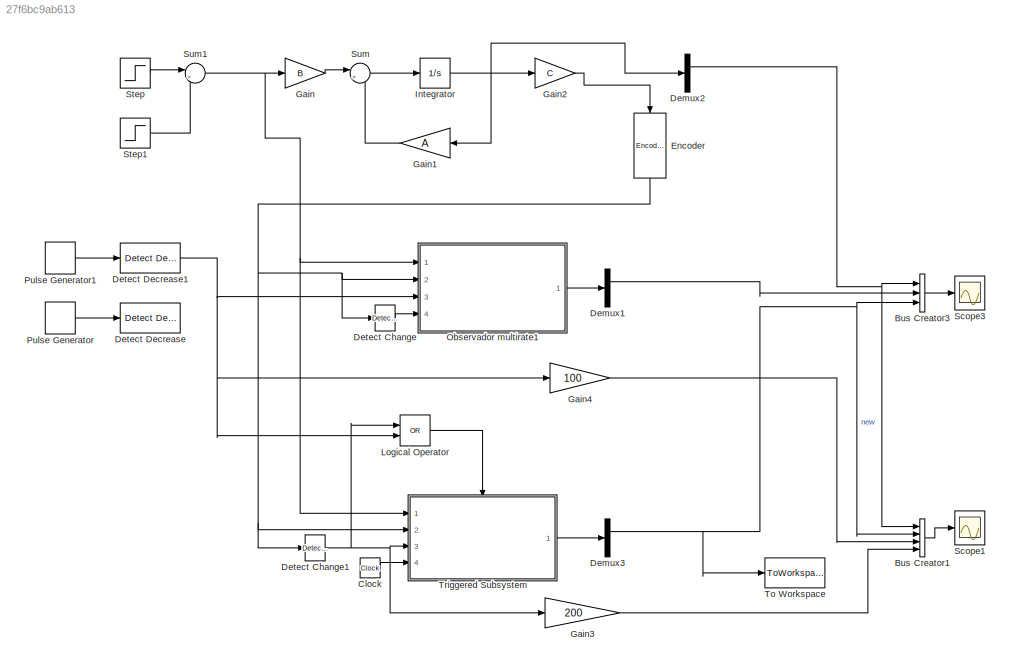
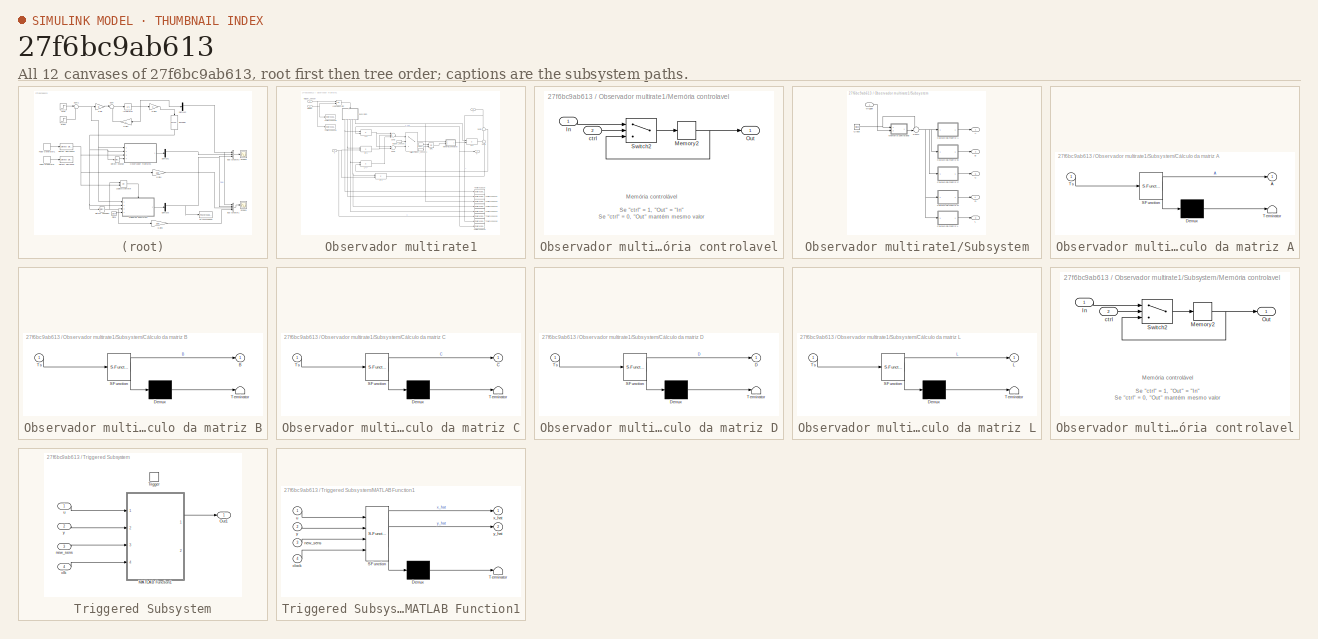
[diagram: thumbnail index - all 12 canvases of the model, root first then tree order]
MODEL slx_27f6bc9ab613
KIND model
BLOCK [BusCreator] Bus Creator1
  DisplayOption = bar
  Ports = [4, 1]
BLOCK [BusCreator] Bus Creator3
  DisplayOption = bar
  Inputs = 3
  Ports = [3, 1]
BLOCK [Clock] Clock
BLOCK [Demux] Demux1
  DisplayOption = bar
  Outputs = 2
  Ports = [1, 2]
BLOCK [Demux] Demux2
  DisplayOption = bar
  Outputs = 2
  Ports = [1, 2]
BLOCK [Demux] Demux3
  DisplayOption = bar
  Outputs = 2
  Ports = [1, 2]
BLOCK [Reference] Detect Change  REF=simulink/Logic and Bit
Operations/Detect
Change
  InputProcessing = Inherited
  OutDataTypeStr = boolean
  Ports = [1, 1]
  SourceBlock = simulink/Logic and Bit\nOperations/Detect\nChange
  SourceType = Detect Change
  vinit = 0
BLOCK [Reference] Detect Change1  REF=simulink/Logic and Bit
Operations/Detect
Change
  InputProcessing = Inherited
  OutDataTypeStr = boolean
  Ports = [1, 1]
  SourceBlock = simulink/Logic and Bit\nOperations/Detect\nChange
  SourceType = Detect Change
  vinit = 0
BLOCK [Reference] Detect Decrease  REF=simulink/Logic and Bit
Operations/Detect
Decrease
  InputProcessing = Inherited
  OutDataTypeStr = boolean
  Ports = [1, 1]
  SourceBlock = simulink/Logic and Bit\nOperations/Detect\nDecrease
  SourceType = Detect Decrease
  vinit = 0.0
BLOCK [Reference] Detect Decrease1  REF=simulink/Logic and Bit
Operations/Detect
Decrease
  InputProcessing = Inherited
  OutDataTypeStr = boolean
  Ports = [1, 1]
  SourceBlock = simulink/Logic and Bit\nOperations/Detect\nDecrease
  SourceType = Detect Decrease
  vinit = 0.0
BLOCK [Reference] Encoder  REF=Encoder/Encoder
  Nr = 10
  Ports = [1, 1]
  SourceBlock = Encoder/Encoder
  SourceType = Encoder de quadratura
BLOCK [Gain] Gain
  Gain = B
  Multiplication = Matrix(K*u)
  OutDataTypeStr = Inherit: Inherit via internal rule
  ParamDataTypeStr = Inherit: Inherit via internal rule
  SaturateOnIntegerOverflow = off
BLOCK [Gain] Gain1
  Gain = A
  Multiplication = Matrix(K*u)
  OutDataTypeStr = Inherit: Inherit via internal rule
  ParamDataTypeStr = Inherit: Inherit via internal rule
  SaturateOnIntegerOverflow = off
BLOCK [Gain] Gain2
  Gain = C
  Multiplication = Matrix(K*u)
  OutDataTypeStr = Inherit: Inherit via internal rule
  ParamDataTypeStr = Inherit: Inherit via internal rule
  SaturateOnIntegerOverflow = off
BLOCK [Gain] Gain3
  Gain = 200
  OutDataTypeStr = double
  ParamDataTypeStr = Inherit: Inherit via internal rule
  SaturateOnIntegerOverflow = off
BLOCK [Gain] Gain4
  Gain = 100
  OutDataTypeStr = double
  ParamDataTypeStr = Inherit: Inherit via internal rule
  SaturateOnIntegerOverflow = off
BLOCK [Integrator] Integrator
  Ports = [1, 1]
BLOCK [Logic] Logical Operator
  AllPortsSameDT = off
  Operator = OR
  OutDataTypeStr = boolean
  Ports = [2, 1]
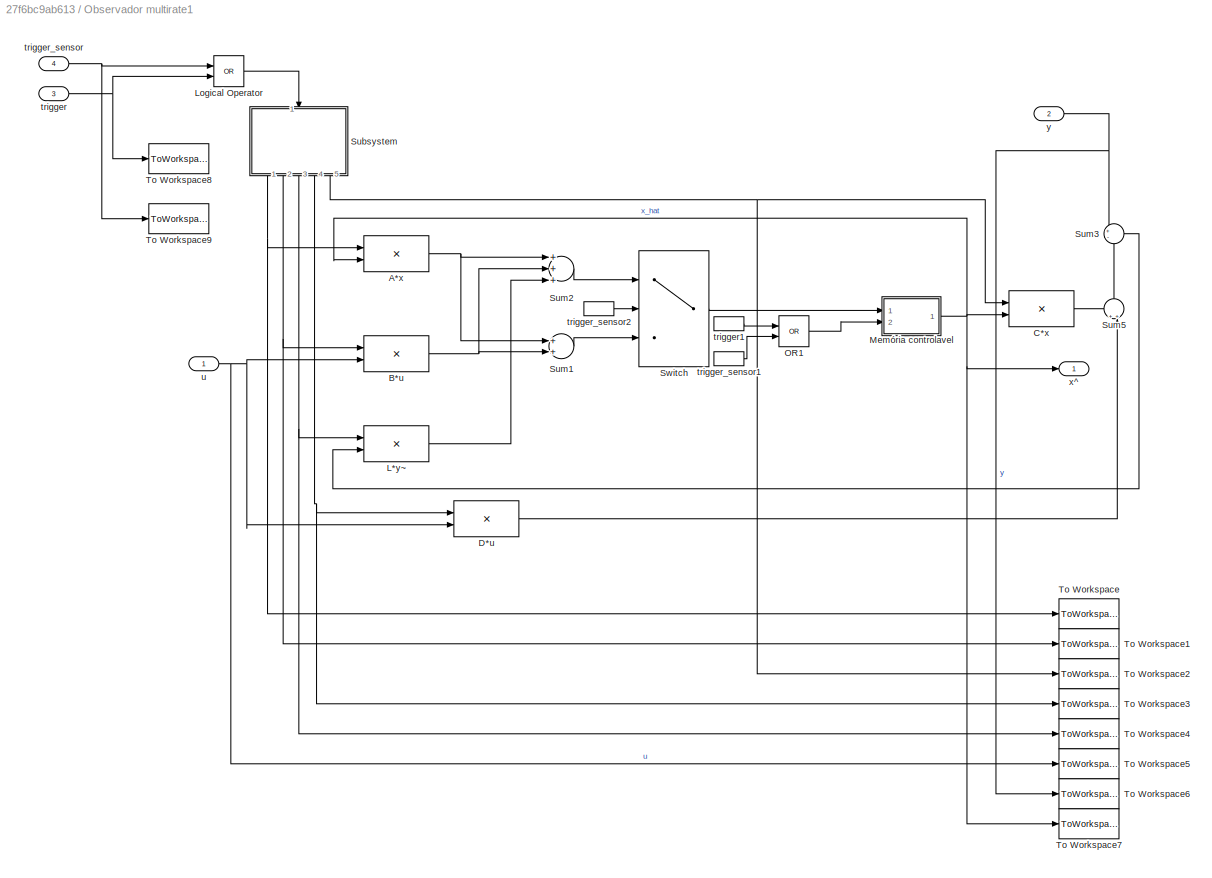
BLOCK [SubSystem] Observador multirate1
  FunctionWithSeparateData = off
  MaskHideContents = off
  MinAlgLoopOccurrences = off
  Opaque = off
  Ports = [4, 1]
  PropExecContextOutsideSubsystem = off
  RTWSystemCode = Auto
  RequestExecContextInheritance = off
BLOCK [Product] Observador multirate1/A*x
  InputSameDT = off
  Multiplication = Matrix(*)
  OutDataTypeStr = Inherit: Inherit via internal rule
  Ports = [2, 1]
  SaturateOnIntegerOverflow = off
BLOCK [Product] Observador multirate1/B*u
  InputSameDT = off
  Multiplication = Matrix(*)
  OutDataTypeStr = Inherit: Inherit via internal rule
  Ports = [2, 1]
  SaturateOnIntegerOverflow = off
BLOCK [Product] Observador multirate1/C*x
  InputSameDT = off
  Multiplication = Matrix(*)
  OutDataTypeStr = Inherit: Inherit via internal rule
  Ports = [2, 1]
  SaturateOnIntegerOverflow = off
BLOCK [Product] Observador multirate1/D*u
  InputSameDT = off
  Multiplication = Matrix(*)
  OutDataTypeStr = Inherit: Inherit via internal rule
  Ports = [2, 1]
  SaturateOnIntegerOverflow = off
BLOCK [Product] Observador multirate1/L*y~
  InputSameDT = off
  Multiplication = Matrix(*)
  OutDataTypeStr = Inherit: Inherit via internal rule
  Ports = [2, 1]
  SaturateOnIntegerOverflow = off
BLOCK [Logic] Observador multirate1/Logical Operator
  AllPortsSameDT = off
  Operator = OR
  OutDataTypeStr = boolean
  Ports = [2, 1]
BLOCK [SubSystem] Observador multirate1/Memória controlavel
  FunctionWithSeparateData = off
  MaskHideContents = off
  MinAlgLoopOccurrences = off
  Opaque = off
  Ports = [2, 1]
  PropExecContextOutsideSubsystem = off
  RTWSystemCode = Auto
  RequestExecContextInheritance = off
BLOCK [Inport] Observador multirate1/Memória controlavel/In
  IconDisplay = Port number
BLOCK [Memory] Observador multirate1/Memória controlavel/Memory2
BLOCK [Outport] Observador multirate1/Memória controlavel/Out
  IconDisplay = Port number
BLOCK [Switch] Observador multirate1/Memória controlavel/Switch2
  InputSameDT = off
  SaturateOnIntegerOverflow = off
BLOCK [Inport] Observador multirate1/Memória controlavel/ctrl
  IconDisplay = Port number
  Port = 2
BLOCK [Logic] Observador multirate1/OR1
  AllPortsSameDT = off
  Operator = OR
  OutDataTypeStr = boolean
  Ports = [2, 1]
BLOCK [SubSystem] Observador multirate1/Subsystem
  FunctionWithSeparateData = off
  MaskHideContents = off
  MinAlgLoopOccurrences = off
  Opaque = off
  Ports = [1, 5]
  PropExecContextOutsideSubsystem = off
  RTWSystemCode = Auto
  RequestExecContextInheritance = off
BLOCK [Outport] Observador multirate1/Subsystem/A
  IconDisplay = Port number
BLOCK [Outport] Observador multirate1/Subsystem/B
  IconDisplay = Port number
  Port = 2
BLOCK [Outport] Observador multirate1/Subsystem/C
  IconDisplay = Port number
  Port = 5
BLOCK [Clock] Observador multirate1/Subsystem/Clock
BLOCK [SubSystem] Observador multirate1/Subsystem/Cálculo da matriz A
  ErrorFcn = Stateflow.Translate.translate
  FunctionWithSeparateData = off
  MaskHideContents = off
  MinAlgLoopOccurrences = off
  Opaque = off
  PermitHierarchicalResolution = ExplicitOnly
  Ports = [1, 1]
  PropExecContextOutsideSubsystem = off
  RTWSystemCode = Auto
  RequestExecContextInheritance = off
  SFBlockType = MATLAB Function
  TreatAsAtomicUnit = on
BLOCK [Demux] Observador multirate1/Subsystem/Cálculo da matriz A/ Demux 
  Outputs = 1
  Ports = [1, 1]
BLOCK [S-Function] Observador multirate1/Subsystem/Cálculo da matriz A/ SFunction 
  EnableBusSupport = on
  FunctionName = sf_sfun
  PortCounts = [1 2]
  Ports = [1, 2]
  Tag = Stateflow S-Function observador_multirate_2 6
BLOCK [Terminator] Observador multirate1/Subsystem/Cálculo da matriz A/ Terminator 
BLOCK [Outport] Observador multirate1/Subsystem/Cálculo da matriz A/A
  IconDisplay = Port number
BLOCK [Inport] Observador multirate1/Subsystem/Cálculo da matriz A/Ts
  IconDisplay = Port number
BLOCK [SubSystem] Observador multirate1/Subsystem/Cálculo da matriz B
  ErrorFcn = Stateflow.Translate.translate
  FunctionWithSeparateData = off
  MaskHideContents = off
  MinAlgLoopOccurrences = off
  Opaque = off
  PermitHierarchicalResolution = ExplicitOnly
  Ports = [1, 1]
  PropExecContextOutsideSubsystem = off
  RTWSystemCode = Auto
  RequestExecContextInheritance = off
  SFBlockType = MATLAB Function
  TreatAsAtomicUnit = on
BLOCK [Demux] Observador multirate1/Subsystem/Cálculo da matriz B/ Demux 
  Outputs = 1
  Ports = [1, 1]
BLOCK [S-Function] Observador multirate1/Subsystem/Cálculo da matriz B/ SFunction 
  EnableBusSupport = on
  FunctionName = sf_sfun
  PortCounts = [1 2]
  Ports = [1, 2]
  Tag = Stateflow S-Function observador_multirate_2 7
BLOCK [Terminator] Observador multirate1/Subsystem/Cálculo da matriz B/ Terminator 
BLOCK [Outport] Observador multirate1/Subsystem/Cálculo da matriz B/B
  IconDisplay = Port number
BLOCK [Inport] Observador multirate1/Subsystem/Cálculo da matriz B/Ts
  IconDisplay = Port number
BLOCK [SubSystem] Observador multirate1/Subsystem/Cálculo da matriz C
  ErrorFcn = Stateflow.Translate.translate
  FunctionWithSeparateData = off
  MaskHideContents = off
  MinAlgLoopOccurrences = off
  Opaque = off
  PermitHierarchicalResolution = ExplicitOnly
  Ports = [1, 1]
  PropExecContextOutsideSubsystem = off
  RTWSystemCode = Auto
  RequestExecContextInheritance = off
  SFBlockType = MATLAB Function
  TreatAsAtomicUnit = on
BLOCK [Demux] Observador multirate1/Subsystem/Cálculo da matriz C/ Demux 
  Outputs = 1
  Ports = [1, 1]
BLOCK [S-Function] Observador multirate1/Subsystem/Cálculo da matriz C/ SFunction 
  EnableBusSupport = on
  FunctionName = sf_sfun
  PortCounts = [1 2]
  Ports = [1, 2]
  Tag = Stateflow S-Function observador_multirate_2 8
BLOCK [Terminator] Observador multirate1/Subsystem/Cálculo da matriz C/ Terminator 
BLOCK [Outport] Observador multirate1/Subsystem/Cálculo da matriz C/C
  IconDisplay = Port number
BLOCK [Inport] Observador multirate1/Subsystem/Cálculo da matriz C/Ts
  IconDisplay = Port number
BLOCK [SubSystem] Observador multirate1/Subsystem/Cálculo da matriz D
  ErrorFcn = Stateflow.Translate.translate
  FunctionWithSeparateData = off
  MaskHideContents = off
  MinAlgLoopOccurrences = off
  Opaque = off
  PermitHierarchicalResolution = ExplicitOnly
  Ports = [1, 1]
  PropExecContextOutsideSubsystem = off
  RTWSystemCode = Auto
  RequestExecContextInheritance = off
  SFBlockType = MATLAB Function
  TreatAsAtomicUnit = on
BLOCK [Demux] Observador multirate1/Subsystem/Cálculo da matriz D/ Demux 
  Outputs = 1
  Ports = [1, 1]
BLOCK [S-Function] Observador multirate1/Subsystem/Cálculo da matriz D/ SFunction 
  EnableBusSupport = on
  FunctionName = sf_sfun
  PortCounts = [1 2]
  Ports = [1, 2]
  Tag = Stateflow S-Function observador_multirate_2 9
BLOCK [Terminator] Observador multirate1/Subsystem/Cálculo da matriz D/ Terminator 
BLOCK [Outport] Observador multirate1/Subsystem/Cálculo da matriz D/D
  IconDisplay = Port number
BLOCK [Inport] Observador multirate1/Subsystem/Cálculo da matriz D/Ts
  IconDisplay = Port number
BLOCK [SubSystem] Observador multirate1/Subsystem/Cálculo da matriz L
  ErrorFcn = Stateflow.Translate.translate
  FunctionWithSeparateData = off
  MaskHideContents = off
  MinAlgLoopOccurrences = off
  Opaque = off
  PermitHierarchicalResolution = ExplicitOnly
  Ports = [1, 1]
  PropExecContextOutsideSubsystem = off
  RTWSystemCode = Auto
  RequestExecContextInheritance = off
  SFBlockType = MATLAB Function
  TreatAsAtomicUnit = on
BLOCK [Demux] Observador multirate1/Subsystem/Cálculo da matriz L/ Demux 
  Outputs = 1
  Ports = [1, 1]
BLOCK [S-Function] Observador multirate1/Subsystem/Cálculo da matriz L/ SFunction 
  EnableBusSupport = on
  FunctionName = sf_sfun
  PortCounts = [1 2]
  Ports = [1, 2]
  Tag = Stateflow S-Function observador_multirate_2 10
BLOCK [Terminator] Observador multirate1/Subsystem/Cálculo da matriz L/ Terminator 
BLOCK [Outport] Observador multirate1/Subsystem/Cálculo da matriz L/L
  IconDisplay = Port number
BLOCK [Inport] Observador multirate1/Subsystem/Cálculo da matriz L/Ts
  IconDisplay = Port number
BLOCK [Outport] Observador multirate1/Subsystem/D
  IconDisplay = Port number
  Port = 4
BLOCK [Outport] Observador multirate1/Subsystem/L
  IconDisplay = Port number
  Port = 3
BLOCK [SubSystem] Observador multirate1/Subsystem/Memória controlavel
  FunctionWithSeparateData = off
  MaskHideContents = off
  MinAlgLoopOccurrences = off
  Opaque = off
  Ports = [2, 1]
  PropExecContextOutsideSubsystem = off
  RTWSystemCode = Auto
  RequestExecContextInheritance = off
BLOCK [Inport] Observador multirate1/Subsystem/Memória controlavel/In
  IconDisplay = Port number
BLOCK [Memory] Observador multirate1/Subsystem/Memória controlavel/Memory2
BLOCK [Outport] Observador multirate1/Subsystem/Memória controlavel/Out
  IconDisplay = Port number
BLOCK [Switch] Observador multirate1/Subsystem/Memória controlavel/Switch2
  InputSameDT = off
  SaturateOnIntegerOverflow = off
BLOCK [Inport] Observador multirate1/Subsystem/Memória controlavel/ctrl
  IconDisplay = Port number
  Port = 2
BLOCK [Sum] Observador multirate1/Subsystem/Sum4
  IconShape = round
  InputSameDT = off
  Inputs = +-|
  OutDataTypeStr = Inherit: Inherit via internal rule
  Ports = [2, 1]
  SaturateOnIntegerOverflow = off
BLOCK [Inport] Observador multirate1/Subsystem/trigger
  IconDisplay = Port number
BLOCK [Sum] Observador multirate1/Sum1
  InputSameDT = off
  OutDataTypeStr = Inherit: Inherit via internal rule
  Ports = [2, 1]
  SaturateOnIntegerOverflow = off
BLOCK [Sum] Observador multirate1/Sum2
  InputSameDT = off
  Inputs = +++
  OutDataTypeStr = Inherit: Inherit via internal rule
  Ports = [3, 1]
  SaturateOnIntegerOverflow = off
BLOCK [Sum] Observador multirate1/Sum3
  IconShape = round
  InputSameDT = off
  Inputs = +-
  OutDataTypeStr = Inherit: Inherit via internal rule
  Ports = [2, 1]
  SaturateOnIntegerOverflow = off
BLOCK [Sum] Observador multirate1/Sum5
  IconShape = round
  InputSameDT = off
  Inputs = ++|
  OutDataTypeStr = Inherit: Inherit via internal rule
  Ports = [2, 1]
  SaturateOnIntegerOverflow = off
BLOCK [Switch] Observador multirate1/Switch
  Criteria = u2 > Threshold
  InputSameDT = off
  SaturateOnIntegerOverflow = off
BLOCK [ToWorkspace] Observador multirate1/To Workspace
  MaxDataPoints = inf
  Ports = [1]
  SampleTime = -1
  VariableName = simA
BLOCK [ToWorkspace] Observador multirate1/To Workspace1
  MaxDataPoints = inf
  Ports = [1]
  SampleTime = -1
  VariableName = simB
BLOCK [ToWorkspace] Observador multirate1/To Workspace2
  MaxDataPoints = inf
  Ports = [1]
  SampleTime = -1
  VariableName = simC
BLOCK [ToWorkspace] Observador multirate1/To Workspace3
  MaxDataPoints = inf
  Ports = [1]
  SampleTime = -1
  VariableName = simD
BLOCK [ToWorkspace] Observador multirate1/To Workspace4
  MaxDataPoints = inf
  Ports = [1]
  SampleTime = -1
  VariableName = simL
BLOCK [ToWorkspace] Observador multirate1/To Workspace5
  MaxDataPoints = inf
  Ports = [1]
  SampleTime = -1
  VariableName = simu
BLOCK [ToWorkspace] Observador multirate1/To Workspace6
  MaxDataPoints = inf
  Ports = [1]
  SampleTime = -1
  VariableName = simy
BLOCK [ToWorkspace] Observador multirate1/To Workspace7
  MaxDataPoints = inf
  Ports = [1]
  SampleTime = -1
  VariableName = simx_hat
BLOCK [ToWorkspace] Observador multirate1/To Workspace8
  MaxDataPoints = inf
  Ports = [1]
  SampleTime = -1
  VariableName = trigger
BLOCK [ToWorkspace] Observador multirate1/To Workspace9
  MaxDataPoints = inf
  Ports = [1]
  SampleTime = -1
  VariableName = trigger_sens
BLOCK [Inport] Observador multirate1/trigger
  IconDisplay = Port number
  Port = 3
BLOCK [InportShadow] Observador multirate1/trigger1
  IconDisplay = Port number
  LatchByDelayingOutsideSignal = off
  LatchInputForFeedbackSignals = off
  Port = 3
BLOCK [Inport] Observador multirate1/trigger_sensor
  IconDisplay = Port number
  Port = 4
BLOCK [InportShadow] Observador multirate1/trigger_sensor1
  IconDisplay = Port number
  LatchByDelayingOutsideSignal = off
  LatchInputForFeedbackSignals = off
  Port = 4
BLOCK [InportShadow] Observador multirate1/trigger_sensor2
  IconDisplay = Port number
  LatchByDelayingOutsideSignal = off
  LatchInputForFeedbackSignals = off
  Port = 4
BLOCK [Inport] Observador multirate1/u
  IconDisplay = Port number
BLOCK [Outport] Observador multirate1/x^
  IconDisplay = Port number
BLOCK [Inport] Observador multirate1/y
  IconDisplay = Port number
  Port = 2
BLOCK [DiscretePulseGenerator] Pulse Generator
  Period = 1
  Ports = [0, 1]
  PulseType = Time based
  PulseWidth = 50
BLOCK [DiscretePulseGenerator] Pulse Generator1
  Period = 0.5
  Ports = [0, 1]
  PulseType = Time based
  PulseWidth = 50
BLOCK [Scope] Scope1
  DataFormat = StructureWithTime
  Floating = off
  LegendLocations = 0.91365     0.87115      0.0675    0.083025
  LimitDataPoints = off
  NumInputPorts = 1
  Ports = [1]
  SampleTime = 0
  ShowLegends = on
  TimeRange = 10
  YMax = 10000
  YMin = -500
BLOCK [Scope] Scope3
  DataFormat = StructureWithTime
  Floating = off
  LegendLocations = 0.91365     0.87115      0.0675    0.063707
  LimitDataPoints = off
  NumInputPorts = 1
  Ports = [1]
  SampleTime = 0
  SaveName = ScopeData2
  ShowLegends = on
  TimeRange = 10
  YMax = 50000
  YMin = -35000
  ZoomMode = yonly
BLOCK [Step] Step
  After = 20
  SampleTime = 0
  Time = 0
BLOCK [Step] Step1
  After = -40
  SampleTime = 0
  Time = 5
BLOCK [Sum] Sum
  IconShape = round
  InputSameDT = off
  Inputs = |++
  OutDataTypeStr = Inherit: Inherit via internal rule
  Ports = [2, 1]
  SaturateOnIntegerOverflow = off
BLOCK [Sum] Sum1
  IconShape = round
  InputSameDT = off
  Inputs = |++
  OutDataTypeStr = Inherit: Inherit via internal rule
  Ports = [2, 1]
  SaturateOnIntegerOverflow = off
BLOCK [ToWorkspace] To Workspace
  MaxDataPoints = inf
  Ports = [1]
  SampleTime = -1
  VariableName = xhat
BLOCK [SubSystem] Triggered Subsystem
  FunctionWithSeparateData = off
  MaskHideContents = off
  MinAlgLoopOccurrences = off
  Opaque = off
  Ports = [4, 1, 0, 1]
  PropExecContextOutsideSubsystem = off
  RTWSystemCode = Auto
  RequestExecContextInheritance = off
  TreatAsAtomicUnit = on
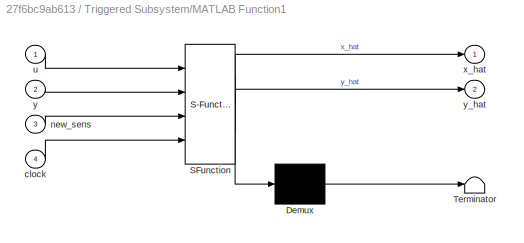
BLOCK [SubSystem] Triggered Subsystem/MATLAB Function1
  ErrorFcn = Stateflow.Translate.translate
  FunctionWithSeparateData = off
  MaskHideContents = off
  MinAlgLoopOccurrences = off
  Opaque = off
  PermitHierarchicalResolution = ExplicitOnly
  Ports = [4, 2]
  PropExecContextOutsideSubsystem = off
  RTWSystemCode = Auto
  RequestExecContextInheritance = off
  SFBlockType = MATLAB Function
  TreatAsAtomicUnit = on
BLOCK [Demux] Triggered Subsystem/MATLAB Function1/ Demux 
  Outputs = 1
  Ports = [1, 1]
BLOCK [S-Function] Triggered Subsystem/MATLAB Function1/ SFunction 
  EnableBusSupport = on
  FunctionName = sf_sfun
  PortCounts = [4 3]
  Ports = [4, 3]
  Tag = Stateflow S-Function observador_multirate_2 11
BLOCK [Terminator] Triggered Subsystem/MATLAB Function1/ Terminator 
BLOCK [Inport] Triggered Subsystem/MATLAB Function1/clock
  IconDisplay = Port number
  Port = 4
BLOCK [Inport] Triggered Subsystem/MATLAB Function1/new_sens
  IconDisplay = Port number
  Port = 3
BLOCK [Inport] Triggered Subsystem/MATLAB Function1/u
  IconDisplay = Port number
BLOCK [Outport] Triggered Subsystem/MATLAB Function1/x_hat
  IconDisplay = Port number
BLOCK [Inport] Triggered Subsystem/MATLAB Function1/y
  IconDisplay = Port number
  Port = 2
BLOCK [Outport] Triggered Subsystem/MATLAB Function1/y_hat
  IconDisplay = Port number
  Port = 2
BLOCK [Outport] Triggered Subsystem/Out1
  IconDisplay = Port number
BLOCK [TriggerPort] Triggered Subsystem/Trigger
  Ports = []
  StatesWhenEnabling = held
BLOCK [Inport] Triggered Subsystem/clk
  IconDisplay = Port number
  Port = 4
BLOCK [Inport] Triggered Subsystem/new_sens
  IconDisplay = Port number
  Port = 3
BLOCK [Inport] Triggered Subsystem/u
  IconDisplay = Port number
BLOCK [Inport] Triggered Subsystem/y
  IconDisplay = Port number
  Port = 2
ANNOTATION Observador multirate1/Memória controlavel: Memória controlável Se "ctrl" = 1, "Out" = "In" Se "ctrl" = 0, "Out" mantém mesmo valor
ANNOTATION Observador multirate1/Subsystem/Memória controlavel: Memória controlável Se "ctrl" = 1, "Out" = "In" Se "ctrl" = 0, "Out" mantém mesmo valor
LINE Bus Creator1:1 -> Scope1:1
LINE Bus Creator3:1 -> Scope3:1
LINE Clock:1 -> Triggered Subsystem:4
LINE Demux1:1 -> Bus Creator3:2
NET Demux2:1 -> Bus Creator1:1, Bus Creator3:1
NET Demux3:1 -> Bus Creator1:2, Bus Creator3:3, To Workspace:1
NET Detect Change1:1 -> Gain3:1, Logical Operator:1, Triggered Subsystem:3
LINE Detect Change:1 -> Observador multirate1:4
NET Detect Decrease1:1 -> Gain4:1, Logical Operator:2, Observador multirate1:3
NET Encoder:1 -> Detect Change1:1, Detect Change:1, Observador multirate1:2, Triggered Subsystem:2
LINE Gain1:1 -> Sum:2
LINE Gain2:1 -> Encoder:1
LINE Gain3:1 -> Bus Creator1:4
LINE Gain4:1 -> Bus Creator1:3
LINE Gain:1 -> Sum:1
NET Integrator:1 -> Demux2:1, Gain1:1, Gain2:1
LINE Logical Operator:1 -> Triggered Subsystem:trigger
NET Observador multirate1/A*x:1 -> Observador multirate1/Sum1:1, Observador multirate1/Sum2:1
NET Observador multirate1/B*u:1 -> Observador multirate1/Sum1:2, Observador multirate1/Sum2:2
LINE Observador multirate1/C*x:1 -> Observador multirate1/Sum5:1
LINE Observador multirate1/D*u:1 -> Observador multirate1/Sum5:2
LINE Observador multirate1/L*y~:1 -> Observador multirate1/Sum2:3
LINE Observador multirate1/Logical Operator:1 -> Observador multirate1/Subsystem:1
LINE Observador multirate1/Memória controlavel/In:1 -> Observador multirate1/Memória controlavel/Switch2:1
NET Observador multirate1/Memória controlavel/Memory2:1 -> Observador multirate1/Memória controlavel/Out:1, Observador multirate1/Memória controlavel/Switch2:3
LINE Observador multirate1/Memória controlavel/Switch2:1 -> Observador multirate1/Memória controlavel/Memory2:1
LINE Observador multirate1/Memória controlavel/ctrl:1 -> Observador multirate1/Memória controlavel/Switch2:2
NET Observador multirate1/Memória controlavel:1 -> Observador multirate1/A*x:2, Observador multirate1/C*x:2, Observador multirate1/To Workspace7:1, Observador multirate1/x^:1
LINE Observador multirate1/OR1:1 -> Observador multirate1/Memória controlavel:2
NET Observador multirate1/Subsystem/Clock:1 -> Observador multirate1/Subsystem/Memória controlavel:1, Observador multirate1/Subsystem/Sum4:1
LINE Observador multirate1/Subsystem/Cálculo da matriz A:1 -> Observador multirate1/Subsystem/A:1
LINE Observador multirate1/Subsystem/Cálculo da matriz B:1 -> Observador multirate1/Subsystem/B:1
LINE Observador multirate1/Subsystem/Cálculo da matriz C:1 -> Observador multirate1/Subsystem/C:1
LINE Observador multirate1/Subsystem/Cálculo da matriz D:1 -> Observador multirate1/Subsystem/D:1
LINE Observador multirate1/Subsystem/Cálculo da matriz L:1 -> Observador multirate1/Subsystem/L:1
LINE Observador multirate1/Subsystem/Memória controlavel/In:1 -> Observador multirate1/Subsystem/Memória controlavel/Switch2:1
NET Observador multirate1/Subsystem/Memória controlavel/Memory2:1 -> Observador multirate1/Subsystem/Memória controlavel/Out:1, Observador multirate1/Subsystem/Memória controlavel/Switch2:3
LINE Observador multirate1/Subsystem/Memória controlavel/Switch2:1 -> Observador multirate1/Subsystem/Memória controlavel/Memory2:1
LINE Observador multirate1/Subsystem/Memória controlavel/ctrl:1 -> Observador multirate1/Subsystem/Memória controlavel/Switch2:2
LINE Observador multirate1/Subsystem/Memória controlavel:1 -> Observador multirate1/Subsystem/Sum4:2
NET Observador multirate1/Subsystem/Sum4:1 -> Observador multirate1/Subsystem/Cálculo da matriz A:1, Observador multirate1/Subsystem/Cálculo da matriz B:1, Observador multirate1/Subsystem/Cálculo da matriz C:1, Observador multirate1/Subsystem/Cálculo da matriz D:1, Observador multirate1/Subsystem/Cálculo da matriz L:1
LINE Observador multirate1/Subsystem/trigger:1 -> Observador multirate1/Subsystem/Memória controlavel:2
NET Observador multirate1/Subsystem:1 -> Observador multirate1/A*x:1, Observador multirate1/To Workspace:1
NET Observador multirate1/Subsystem:2 -> Observador multirate1/B*u:1, Observador multirate1/To Workspace1:1
NET Observador multirate1/Subsystem:3 -> Observador multirate1/L*y~:1, Observador multirate1/To Workspace4:1
NET Observador multirate1/Subsystem:4 -> Observador multirate1/D*u:1, Observador multirate1/To Workspace3:1
NET Observador multirate1/Subsystem:5 -> Observador multirate1/C*x:1, Observador multirate1/To Workspace2:1
LINE Observador multirate1/Sum1:1 -> Observador multirate1/Switch:3
LINE Observador multirate1/Sum2:1 -> Observador multirate1/Switch:1
LINE Observador multirate1/Sum3:1 -> Observador multirate1/L*y~:2
LINE Observador multirate1/Sum5:1 -> Observador multirate1/Sum3:2
LINE Observador multirate1/Switch:1 -> Observador multirate1/Memória controlavel:1
LINE Observador multirate1/trigger1:1 -> Observador multirate1/OR1:1
NET Observador multirate1/trigger:1 -> Observador multirate1/Logical Operator:2, Observador multirate1/To Workspace8:1
LINE Observador multirate1/trigger_sensor1:1 -> Observador multirate1/OR1:2
LINE Observador multirate1/trigger_sensor2:1 -> Observador multirate1/Switch:2
NET Observador multirate1/trigger_sensor:1 -> Observador multirate1/Logical Operator:1, Observador multirate1/To Workspace9:1
NET Observador multirate1/u:1 -> Observador multirate1/B*u:2, Observador multirate1/D*u:2, Observador multirate1/To Workspace5:1
NET Observador multirate1/y:1 -> Observador multirate1/Sum3:1, Observador multirate1/To Workspace6:1
LINE Observador multirate1:1 -> Demux1:1
LINE Pulse Generator1:1 -> Detect Decrease1:1
LINE Pulse Generator:1 -> Detect Decrease:1
LINE Step1:1 -> Sum1:2
LINE Step:1 -> Sum1:1
NET Sum1:1 -> Gain:1, Observador multirate1:1, Triggered Subsystem:1
LINE Sum:1 -> Integrator:1
LINE Triggered Subsystem/MATLAB Function1:1 -> Triggered Subsystem/Out1:1
LINE Triggered Subsystem/clk:1 -> Triggered Subsystem/MATLAB Function1:4
LINE Triggered Subsystem/new_sens:1 -> Triggered Subsystem/MATLAB Function1:3
LINE Triggered Subsystem/u:1 -> Triggered Subsystem/MATLAB Function1:1
LINE Triggered Subsystem/y:1 -> Triggered Subsystem/MATLAB Function1:2
LINE Triggered Subsystem:1 -> Demux3:1
note: NET lines group one-source signal fan-out (src -> all destinations, sorted); 1:1 wires keep LINE
